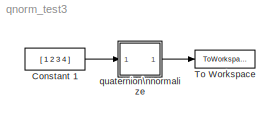
MODEL qnorm_test3
KIND model
BLOCK [Constant] Constant 1
  Value = [ 1 2 3 4 ]
BLOCK [ToWorkspace] To Workspace
  MaxDataPoints = 1
  SampleTime = -1
  SaveFormat = Array
  VariableName = simout
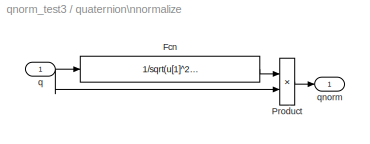
BLOCK [SubSystem] quaternion\nnormalize
  FunctionWithSeparateData = off
  MinAlgLoopOccurrences = off
  Ports = [1, 1]
  RTWSystemCode = Auto
BLOCK [Fcn] quaternion\nnormalize/Fcn
  Expr = 1/sqrt(u[1]^2+u[2]^2+u[3]^2+u[4]^2)
BLOCK [Product] quaternion\nnormalize/Product
  Ports = [2, 1]
BLOCK [Inport] quaternion\nnormalize/q
  IconDisplay = Port number
  PortDimensions = 4
BLOCK [Outport] quaternion\nnormalize/qnorm
  IconDisplay = Port number
  InitialOutput = 0
LINE Constant 1:1 -> quaternion\nnormalize:1
LINE quaternion\nnormalize/Fcn:1 -> quaternion\nnormalize/Product:1
LINE quaternion\nnormalize/Product:1 -> quaternion\nnormalize/qnorm:1
NET quaternion\nnormalize/q:1 -> quaternion\nnormalize/Fcn:1, quaternion\nnormalize/Product:2
LINE quaternion\nnormalize:1 -> To Workspace:1
note: NET lines group one-source signal fan-out (src -> all destinations, sorted); 1:1 wires keep LINE
